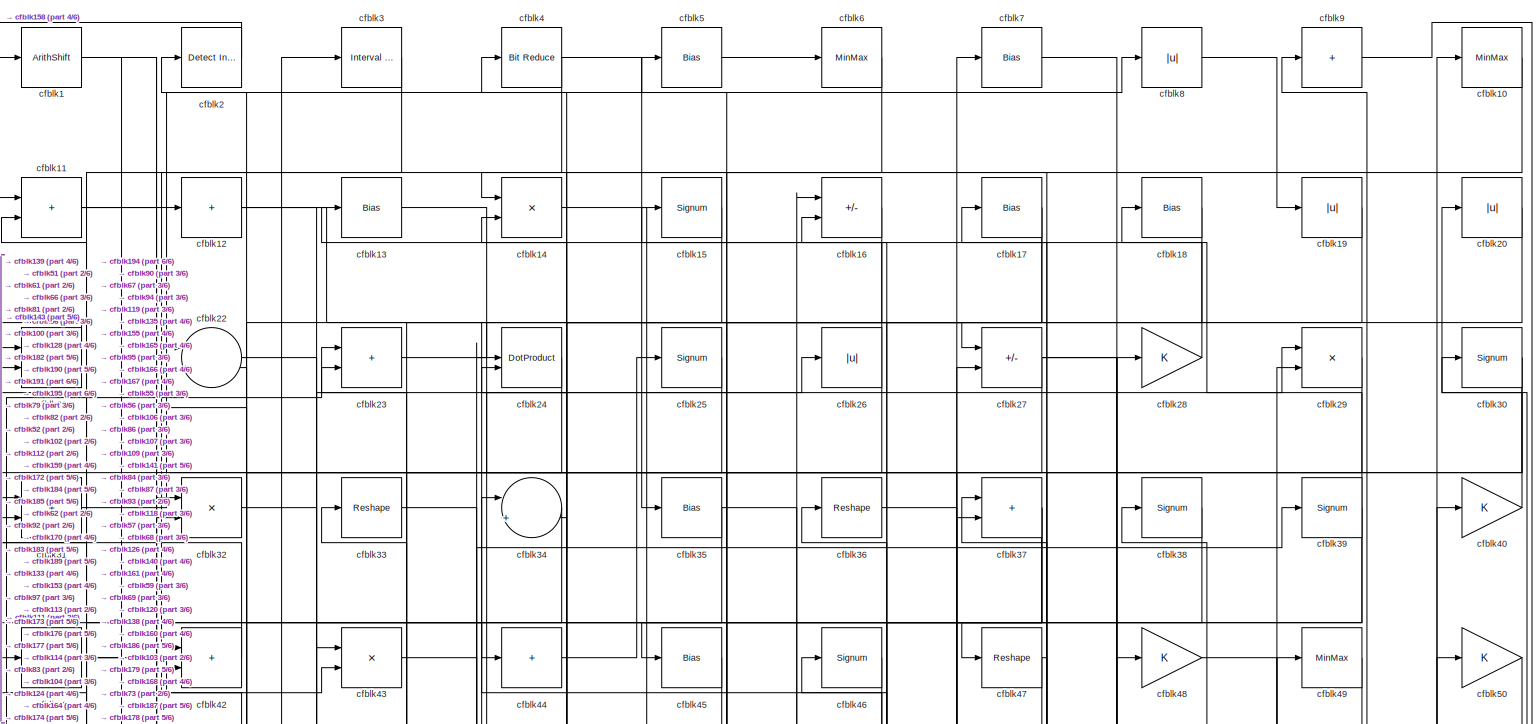
[diagram: root canvas - part 1/6, full width, top band]
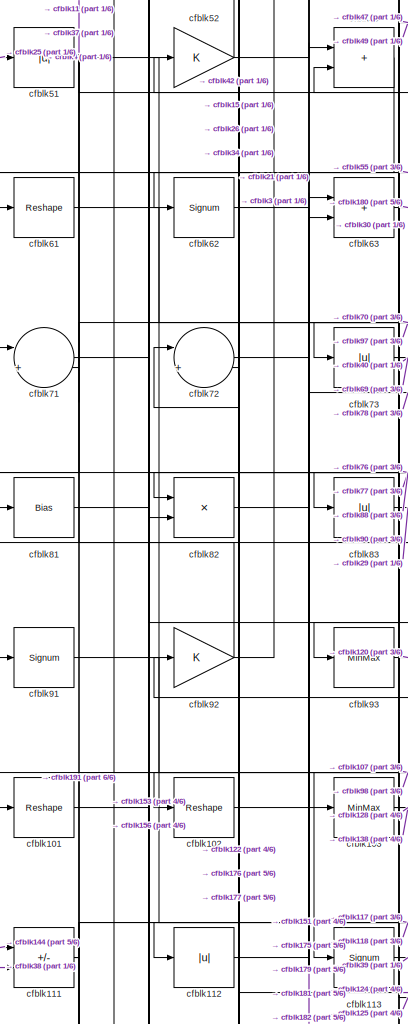
[diagram: root canvas - part 2/6, middle left region]
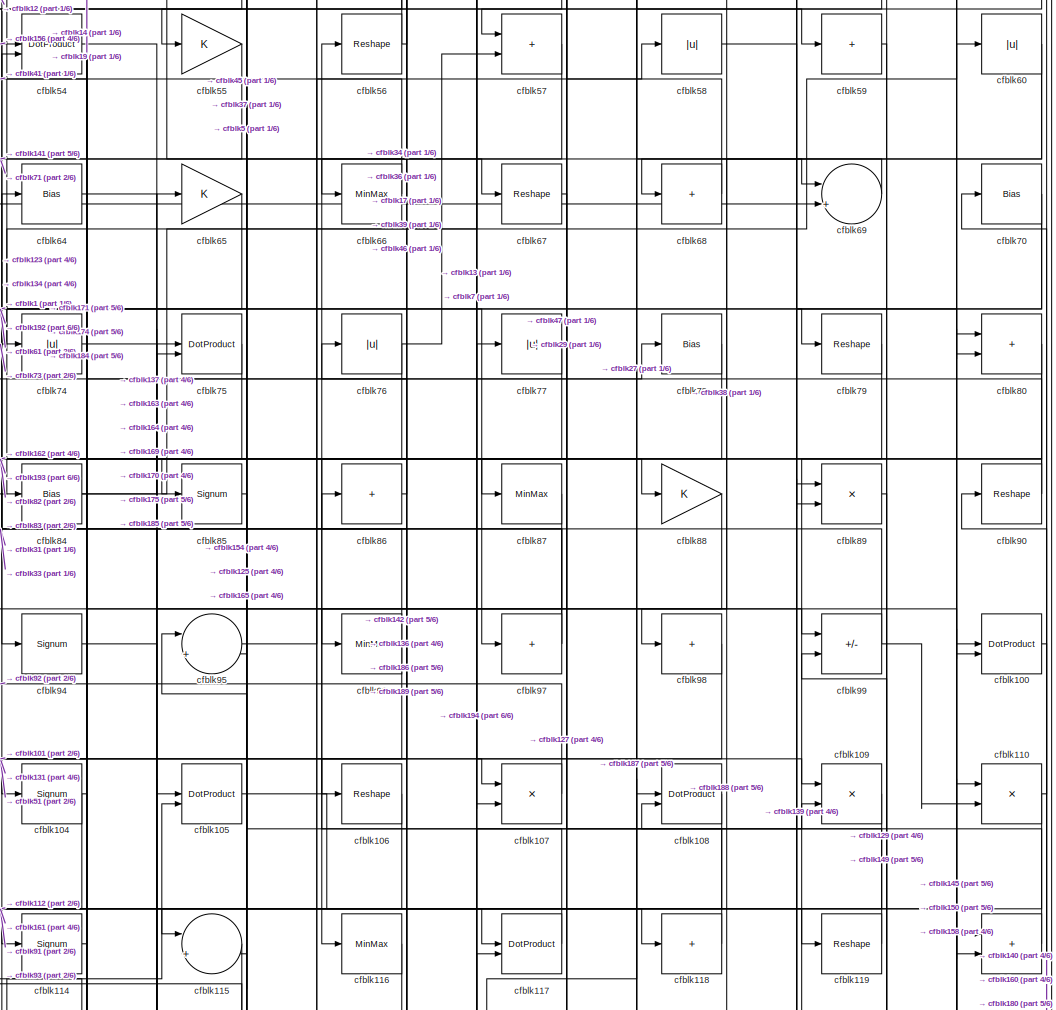
[diagram: root canvas - part 3/6, central region]
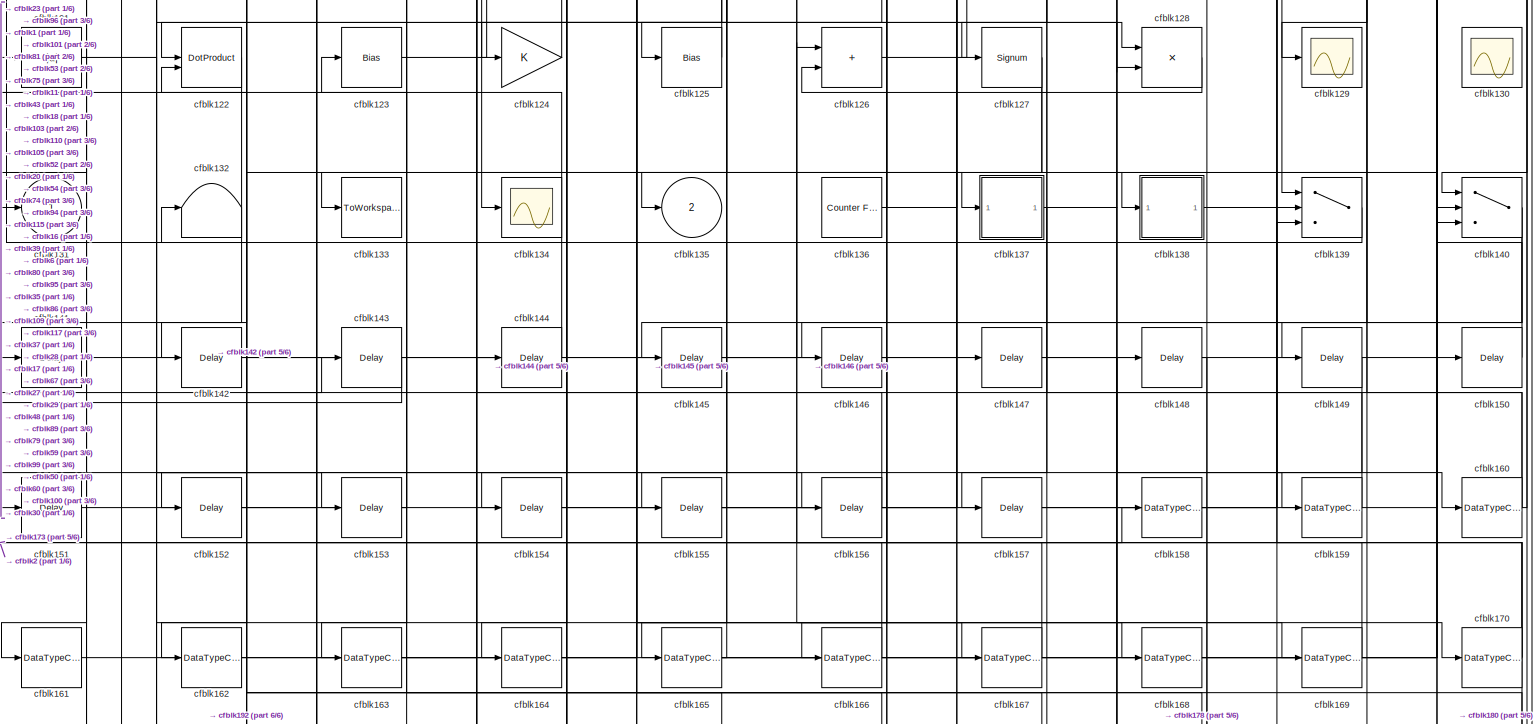
[diagram: root canvas - part 4/6, full width, bottom band]
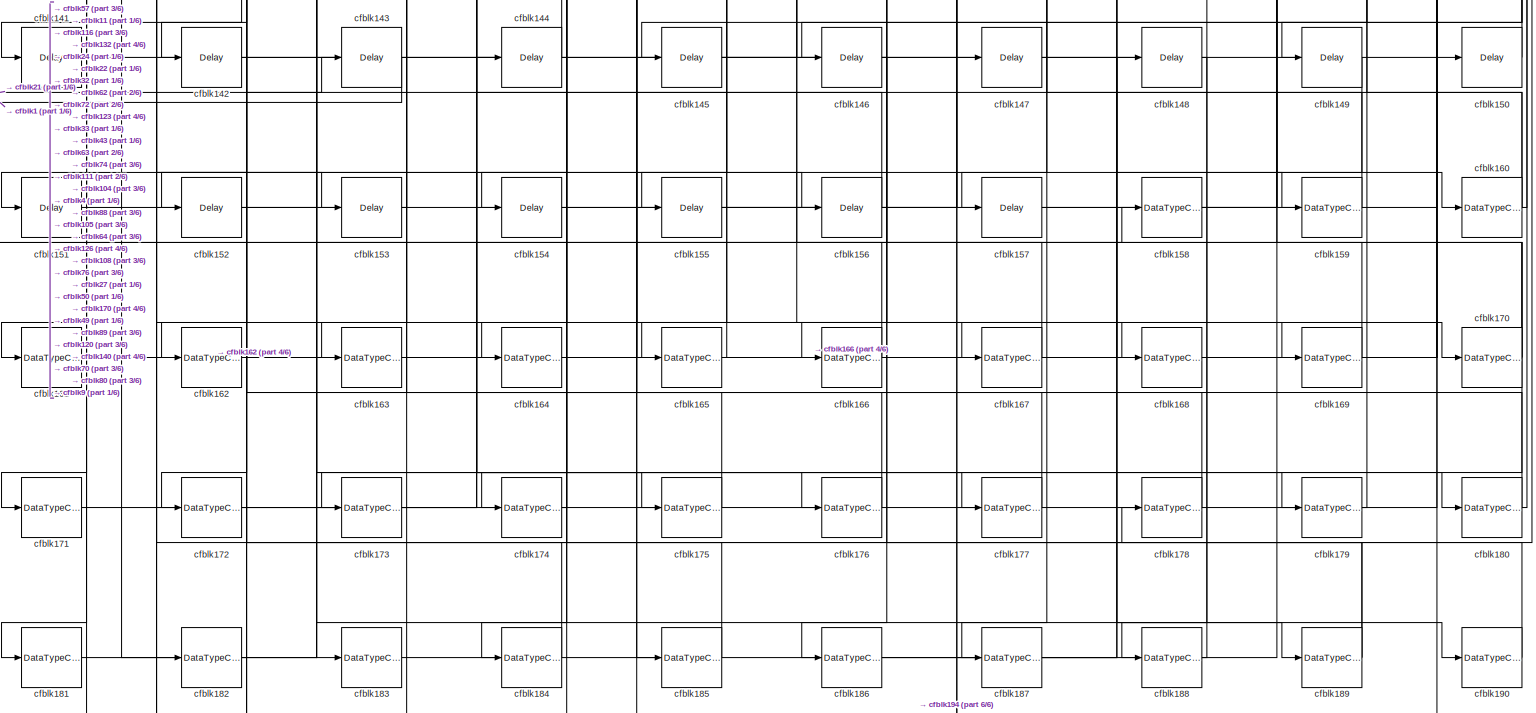
[diagram: root canvas - part 5/6, full width, bottom band]
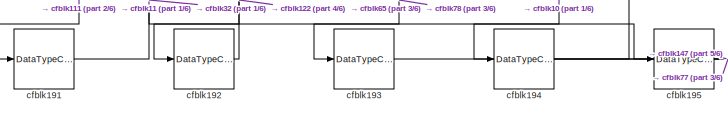
[diagram: root canvas - part 6/6, bottom left region]
MODEL slx_7a493514b1d8
KIND model
CONFIG AbsTol = auto
CONFIG EnableMultiTasking = off
CONFIG FixedStep = auto
CONFIG MaxStep = auto
CONFIG MinStep = auto
CONFIG RelTol = 1e-3
CONFIG SampleTimeConstraint = Unconstrained
CONFIG SolverName = VariableStepAuto
CONFIG StartTime = 0.0
CONFIG StopTime = 10.0
BLOCK [ArithShift] cfblk1
  BitShiftNumber = 8
  InputPortMap = u0
BLOCK [MinMax] cfblk10
BLOCK [DotProduct] cfblk100
  OutDataTypeStr = Inherit: Inherit via internal rule
BLOCK [Reshape] cfblk101
BLOCK [Reshape] cfblk102
BLOCK [MinMax] cfblk103
BLOCK [Signum] cfblk104
BLOCK [DotProduct] cfblk105
  OutDataTypeStr = Inherit: Inherit via internal rule
BLOCK [Reshape] cfblk106
BLOCK [Product] cfblk107
  Inputs = */
  RndMeth = Zero
  SaturateOnIntegerOverflow = on
BLOCK [DotProduct] cfblk108
  OutDataTypeStr = Inherit: Inherit via internal rule
BLOCK [Product] cfblk109
  Inputs = */
  RndMeth = Zero
  SaturateOnIntegerOverflow = on
BLOCK [Sum] cfblk11
  IconShape = rectangular
BLOCK [Product] cfblk110
  Inputs = */
  RndMeth = Zero
  SaturateOnIntegerOverflow = on
BLOCK [Sum] cfblk111
  IconShape = rectangular
  Inputs = +-
BLOCK [Abs] cfblk112
  SaturateOnIntegerOverflow = off
BLOCK [Signum] cfblk113
BLOCK [Signum] cfblk114
BLOCK [Sum] cfblk115
  Inputs = |++
BLOCK [MinMax] cfblk116
BLOCK [DotProduct] cfblk117
  OutDataTypeStr = Inherit: Inherit via internal rule
BLOCK [Sum] cfblk118
  IconShape = rectangular
  Inputs = +
BLOCK [Reshape] cfblk119
BLOCK [Sum] cfblk12
  IconShape = rectangular
  Inputs = +
BLOCK [Sum] cfblk120
  IconShape = rectangular
BLOCK [Abs] cfblk121
  SaturateOnIntegerOverflow = off
BLOCK [DotProduct] cfblk122
  OutDataTypeStr = Inherit: Inherit via internal rule
BLOCK [Bias] cfblk123
  Bias = 0.0
  SaturateOnIntegerOverflow = off
BLOCK [Gain] cfblk124
BLOCK [Bias] cfblk125
  Bias = 0.0
  SaturateOnIntegerOverflow = off
BLOCK [Sum] cfblk126
  IconShape = rectangular
BLOCK [Signum] cfblk127
BLOCK [Product] cfblk128
  Inputs = */
  RndMeth = Zero
  SaturateOnIntegerOverflow = on
BLOCK [Scope] cfblk129
  Floating = off
  NumInputPorts = 1
  ScopeSpecificationString = Simulink.scopes.TimeScopeBlockCfg('CurrentConfiguration', extmgr.ConfigurationSet(extmgr.Configuration('Core','General UI',true),extmgr.Configuration('Core','Source UI',true),extmgr.Configuration('Sources','WiredSimulink',true,'DataLoggingVariableName','ScopeData2','DataLoggingSaveFormat','Array','DataLoggingLimitDataPoints',true,'DataLoggingDecimation','1'),extmgr.Configuration('Visuals','Time Do...<+868ch>
BLOCK [Bias] cfblk13
  Bias = 0.0
  SaturateOnIntegerOverflow = off
BLOCK [Scope] cfblk130
  Floating = on
  NumInputPorts = 1
  ScopeSpecificationString = Simulink.scopes.TimeScopeBlockCfg('CurrentConfiguration', extmgr.ConfigurationSet(extmgr.Configuration('Core','General UI',true,'FigureColor',[0.156862745098039 0.156862745098039 0.156862745098039]),extmgr.Configuration('Core','Source UI',true),extmgr.Configuration('Sources','WiredSimulink',true,'DataLoggingVariableName','ScopeData1','DataLoggingSaveFormat','StructureWithTime','DataLoggingLimitDat...<+2713ch>
BLOCK [Outport] cfblk131
  VectorParamsAs1DForOutWhenUnconnected = off
BLOCK [Terminator] cfblk132
BLOCK [ToWorkspace] cfblk133
  MaxDataPoints = inf
  SampleTime = -1
  SaveFormat = Timeseries
  VariableName = simout
BLOCK [Scope] cfblk134
  Floating = off
  NumInputPorts = 1
  ScopeSpecificationString = Simulink.scopes.TimeScopeBlockCfg('CurrentConfiguration', extmgr.ConfigurationSet(extmgr.Configuration('Core','General UI',true),extmgr.Configuration('Core','Source UI',true),extmgr.Configuration('Sources','WiredSimulink',true,'DataLoggingVariableName','ScopeData2','DataLoggingSaveFormat','Array','DataLoggingLimitDataPoints',true,'DataLoggingDecimation','1'),extmgr.Configuration('Visuals','Time Do...<+868ch>
BLOCK [Outport] cfblk135
  Port = 2
  VectorParamsAs1DForOutWhenUnconnected = off
BLOCK [Reference] cfblk136  REF=hdlsllib/Sources/Counter
Free-Running
  SourceBlock = hdlsllib/Sources/Counter\nFree-Running
  SourceType = Counter Free-Running
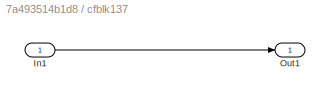
BLOCK [SubSystem] cfblk137
  LibrarySourceBlock = hdlsllib/Ports &\nSubsystems/Subsystem
BLOCK [Inport] cfblk137/In1
BLOCK [Outport] cfblk137/Out1
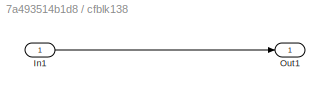
BLOCK [SubSystem] cfblk138
  LibrarySourceBlock = hdlsllib/Ports &\nSubsystems/Subsystem
BLOCK [Inport] cfblk138/In1
BLOCK [Outport] cfblk138/Out1
BLOCK [Switch] cfblk139
  InputSameDT = off
  SaturateOnIntegerOverflow = off
BLOCK [Product] cfblk14
  Inputs = */
  RndMeth = Zero
  SaturateOnIntegerOverflow = on
BLOCK [Switch] cfblk140
  InputSameDT = off
  SaturateOnIntegerOverflow = off
BLOCK [Delay] cfblk141
  InputPortMap = u0
  SampleTime = 1
BLOCK [Delay] cfblk142
  InputPortMap = u0
  SampleTime = 1
BLOCK [Delay] cfblk143
  InputPortMap = u0
  SampleTime = 1
BLOCK [Delay] cfblk144
  InputPortMap = u0
  SampleTime = 1
BLOCK [Delay] cfblk145
  InputPortMap = u0
  SampleTime = 1
BLOCK [Delay] cfblk146
  InputPortMap = u0
  SampleTime = 1
BLOCK [Delay] cfblk147
  InputPortMap = u0
  SampleTime = 1
BLOCK [Delay] cfblk148
  InputPortMap = u0
  SampleTime = 1
BLOCK [Delay] cfblk149
  InputPortMap = u0
  SampleTime = 1
BLOCK [Signum] cfblk15
BLOCK [Delay] cfblk150
  InputPortMap = u0
  SampleTime = 1
BLOCK [Delay] cfblk151
  InputPortMap = u0
  SampleTime = 1
BLOCK [Delay] cfblk152
  InputPortMap = u0
  SampleTime = 1
BLOCK [Delay] cfblk153
  InputPortMap = u0
  SampleTime = 1
BLOCK [Delay] cfblk154
  InputPortMap = u0
  SampleTime = 1
BLOCK [Delay] cfblk155
  InputPortMap = u0
  SampleTime = 1
BLOCK [Delay] cfblk156
  InputPortMap = u0
  SampleTime = 1
BLOCK [Delay] cfblk157
  InputPortMap = u0
  SampleTime = 1
BLOCK [DataTypeConversion] cfblk158
  OutDataTypeStr = uint8
  RndMeth = Floor
  SaturateOnIntegerOverflow = off
BLOCK [DataTypeConversion] cfblk159
  OutDataTypeStr = uint8
  RndMeth = Floor
  SaturateOnIntegerOverflow = off
BLOCK [Sum] cfblk16
  IconShape = rectangular
  Inputs = +-
BLOCK [DataTypeConversion] cfblk160
  RndMeth = Floor
  SaturateOnIntegerOverflow = off
BLOCK [DataTypeConversion] cfblk161
  OutDataTypeStr = uint8
  RndMeth = Floor
  SaturateOnIntegerOverflow = off
BLOCK [DataTypeConversion] cfblk162
  OutDataTypeStr = uint8
  RndMeth = Floor
  SaturateOnIntegerOverflow = off
BLOCK [DataTypeConversion] cfblk163
  OutDataTypeStr = uint8
  RndMeth = Floor
  SaturateOnIntegerOverflow = off
BLOCK [DataTypeConversion] cfblk164
  OutDataTypeStr = uint8
  RndMeth = Floor
  SaturateOnIntegerOverflow = off
BLOCK [DataTypeConversion] cfblk165
  RndMeth = Floor
  SaturateOnIntegerOverflow = off
BLOCK [DataTypeConversion] cfblk166
  OutDataTypeStr = uint8
  RndMeth = Floor
  SaturateOnIntegerOverflow = off
BLOCK [DataTypeConversion] cfblk167
  OutDataTypeStr = uint8
  RndMeth = Floor
  SaturateOnIntegerOverflow = off
BLOCK [DataTypeConversion] cfblk168
  OutDataTypeStr = uint8
  RndMeth = Floor
  SaturateOnIntegerOverflow = off
BLOCK [DataTypeConversion] cfblk169
  OutDataTypeStr = uint8
  RndMeth = Floor
  SaturateOnIntegerOverflow = off
BLOCK [Bias] cfblk17
  Bias = 0.0
  SaturateOnIntegerOverflow = off
BLOCK [DataTypeConversion] cfblk170
  RndMeth = Floor
  SaturateOnIntegerOverflow = off
BLOCK [DataTypeConversion] cfblk171
  OutDataTypeStr = uint8
  RndMeth = Floor
  SaturateOnIntegerOverflow = off
BLOCK [DataTypeConversion] cfblk172
  OutDataTypeStr = uint8
  RndMeth = Floor
  SaturateOnIntegerOverflow = off
BLOCK [DataTypeConversion] cfblk173
  OutDataTypeStr = uint8
  RndMeth = Floor
  SaturateOnIntegerOverflow = off
BLOCK [DataTypeConversion] cfblk174
  OutDataTypeStr = uint8
  RndMeth = Floor
  SaturateOnIntegerOverflow = off
BLOCK [DataTypeConversion] cfblk175
  OutDataTypeStr = uint8
  RndMeth = Floor
  SaturateOnIntegerOverflow = off
BLOCK [DataTypeConversion] cfblk176
  OutDataTypeStr = uint8
  RndMeth = Floor
  SaturateOnIntegerOverflow = off
BLOCK [DataTypeConversion] cfblk177
  OutDataTypeStr = uint8
  RndMeth = Floor
  SaturateOnIntegerOverflow = off
BLOCK [DataTypeConversion] cfblk178
  OutDataTypeStr = uint8
  RndMeth = Floor
  SaturateOnIntegerOverflow = off
BLOCK [DataTypeConversion] cfblk179
  OutDataTypeStr = uint8
  RndMeth = Floor
  SaturateOnIntegerOverflow = off
BLOCK [Bias] cfblk18
  Bias = 0.0
  SaturateOnIntegerOverflow = off
BLOCK [DataTypeConversion] cfblk180
  RndMeth = Floor
  SaturateOnIntegerOverflow = off
BLOCK [DataTypeConversion] cfblk181
  OutDataTypeStr = uint8
  RndMeth = Floor
  SaturateOnIntegerOverflow = off
BLOCK [DataTypeConversion] cfblk182
  OutDataTypeStr = uint8
  RndMeth = Floor
  SaturateOnIntegerOverflow = off
BLOCK [DataTypeConversion] cfblk183
  OutDataTypeStr = uint8
  RndMeth = Floor
  SaturateOnIntegerOverflow = off
BLOCK [DataTypeConversion] cfblk184
  OutDataTypeStr = uint8
  RndMeth = Floor
  SaturateOnIntegerOverflow = off
BLOCK [DataTypeConversion] cfblk185
  OutDataTypeStr = uint8
  RndMeth = Floor
  SaturateOnIntegerOverflow = off
BLOCK [DataTypeConversion] cfblk186
  OutDataTypeStr = uint8
  RndMeth = Floor
  SaturateOnIntegerOverflow = off
BLOCK [DataTypeConversion] cfblk187
  OutDataTypeStr = uint8
  RndMeth = Floor
  SaturateOnIntegerOverflow = off
BLOCK [DataTypeConversion] cfblk188
  OutDataTypeStr = uint8
  RndMeth = Floor
  SaturateOnIntegerOverflow = off
BLOCK [DataTypeConversion] cfblk189
  RndMeth = Floor
  SaturateOnIntegerOverflow = off
BLOCK [Abs] cfblk19
  SaturateOnIntegerOverflow = off
BLOCK [DataTypeConversion] cfblk190
  OutDataTypeStr = uint8
  RndMeth = Floor
  SaturateOnIntegerOverflow = off
BLOCK [DataTypeConversion] cfblk191
  OutDataTypeStr = uint8
  RndMeth = Floor
  SaturateOnIntegerOverflow = off
BLOCK [DataTypeConversion] cfblk192
  OutDataTypeStr = uint8
  RndMeth = Floor
  SaturateOnIntegerOverflow = off
BLOCK [DataTypeConversion] cfblk193
  OutDataTypeStr = uint8
  RndMeth = Floor
  SaturateOnIntegerOverflow = off
BLOCK [DataTypeConversion] cfblk194
  RndMeth = Floor
  SaturateOnIntegerOverflow = off
BLOCK [DataTypeConversion] cfblk195
  OutDataTypeStr = uint8
  RndMeth = Floor
  SaturateOnIntegerOverflow = off
BLOCK [Reference] cfblk2  REF=simulink/Logic and Bit
Operations/Detect
Increase
  LibrarySourceBlock = hdlsllib/Logic and Bit\nOperations/Detect\nIncrease
  SourceBlock = simulink/Logic and Bit\nOperations/Detect\nIncrease
  SourceType = Detect Increase
BLOCK [Abs] cfblk20
  SaturateOnIntegerOverflow = off
BLOCK [Product] cfblk21
  Inputs = */
  RndMeth = Zero
  SaturateOnIntegerOverflow = on
BLOCK [Sum] cfblk22
  Inputs = |++
BLOCK [Sum] cfblk23
  IconShape = rectangular
BLOCK [DotProduct] cfblk24
  OutDataTypeStr = Inherit: Inherit via internal rule
BLOCK [Signum] cfblk25
BLOCK [Abs] cfblk26
  SaturateOnIntegerOverflow = off
BLOCK [Sum] cfblk27
  IconShape = rectangular
  Inputs = +-
BLOCK [Gain] cfblk28
BLOCK [Product] cfblk29
  Inputs = */
  RndMeth = Zero
  SaturateOnIntegerOverflow = on
BLOCK [Reference] cfblk3  REF=hdlsllib/Logic and Bit
Operations/Interval Test
  SourceBlock = hdlsllib/Logic and Bit\nOperations/Interval Test
  SourceType = Interval Test
BLOCK [Signum] cfblk30
BLOCK [Sum] cfblk31
  IconShape = rectangular
BLOCK [Product] cfblk32
  Inputs = */
  RndMeth = Zero
  SaturateOnIntegerOverflow = on
BLOCK [Reshape] cfblk33
BLOCK [Sum] cfblk34
  Inputs = |++
BLOCK [Bias] cfblk35
  Bias = 0.0
  SaturateOnIntegerOverflow = off
BLOCK [Reshape] cfblk36
BLOCK [Sum] cfblk37
  IconShape = rectangular
BLOCK [Signum] cfblk38
BLOCK [Signum] cfblk39
BLOCK [Reference] cfblk4  REF=hdlsllib/Logic and Bit
Operations/Bit Reduce
  SourceBlock = hdlsllib/Logic and Bit\nOperations/Bit Reduce
  SourceType = Bit Reduce
BLOCK [Gain] cfblk40
BLOCK [Sum] cfblk41
  IconShape = rectangular
  Inputs = +
BLOCK [Sum] cfblk42
  IconShape = rectangular
BLOCK [Product] cfblk43
  Inputs = */
  RndMeth = Zero
  SaturateOnIntegerOverflow = on
BLOCK [Sum] cfblk44
  IconShape = rectangular
  Inputs = +
BLOCK [Bias] cfblk45
  Bias = 0.0
  SaturateOnIntegerOverflow = off
BLOCK [Signum] cfblk46
BLOCK [Reshape] cfblk47
BLOCK [Gain] cfblk48
BLOCK [MinMax] cfblk49
BLOCK [Bias] cfblk5
  Bias = 0.0
  SaturateOnIntegerOverflow = off
BLOCK [Gain] cfblk50
BLOCK [Abs] cfblk51
  SaturateOnIntegerOverflow = off
BLOCK [Gain] cfblk52
BLOCK [Sum] cfblk53
  IconShape = rectangular
BLOCK [DotProduct] cfblk54
  OutDataTypeStr = Inherit: Inherit via internal rule
BLOCK [Gain] cfblk55
BLOCK [Reshape] cfblk56
BLOCK [Sum] cfblk57
  IconShape = rectangular
BLOCK [Abs] cfblk58
  SaturateOnIntegerOverflow = off
BLOCK [Sum] cfblk59
  IconShape = rectangular
  Inputs = +
BLOCK [MinMax] cfblk6
BLOCK [Abs] cfblk60
  SaturateOnIntegerOverflow = off
BLOCK [Reshape] cfblk61
BLOCK [Signum] cfblk62
BLOCK [Sum] cfblk63
  IconShape = rectangular
BLOCK [Bias] cfblk64
  Bias = 0.0
  SaturateOnIntegerOverflow = off
BLOCK [Gain] cfblk65
BLOCK [MinMax] cfblk66
BLOCK [Reshape] cfblk67
BLOCK [Sum] cfblk68
  IconShape = rectangular
  Inputs = +
BLOCK [Sum] cfblk69
  Inputs = |++
BLOCK [Bias] cfblk7
  Bias = 0.0
  SaturateOnIntegerOverflow = off
BLOCK [Bias] cfblk70
  Bias = 0.0
  SaturateOnIntegerOverflow = off
BLOCK [Sum] cfblk71
  Inputs = |++
BLOCK [Sum] cfblk72
  Inputs = |++
BLOCK [Abs] cfblk73
  SaturateOnIntegerOverflow = off
BLOCK [Abs] cfblk74
  SaturateOnIntegerOverflow = off
BLOCK [DotProduct] cfblk75
  OutDataTypeStr = Inherit: Inherit via internal rule
BLOCK [Abs] cfblk76
  SaturateOnIntegerOverflow = off
BLOCK [Abs] cfblk77
  SaturateOnIntegerOverflow = off
BLOCK [Bias] cfblk78
  Bias = 0.0
  SaturateOnIntegerOverflow = off
BLOCK [Reshape] cfblk79
BLOCK [Abs] cfblk8
  SaturateOnIntegerOverflow = off
BLOCK [Sum] cfblk80
  IconShape = rectangular
BLOCK [Bias] cfblk81
  Bias = 0.0
  SaturateOnIntegerOverflow = off
BLOCK [Product] cfblk82
  Inputs = */
  RndMeth = Zero
  SaturateOnIntegerOverflow = on
BLOCK [Abs] cfblk83
  SaturateOnIntegerOverflow = off
BLOCK [Bias] cfblk84
  Bias = 0.0
  SaturateOnIntegerOverflow = off
BLOCK [Signum] cfblk85
BLOCK [Sum] cfblk86
  IconShape = rectangular
  Inputs = +
BLOCK [MinMax] cfblk87
BLOCK [Gain] cfblk88
BLOCK [Product] cfblk89
  Inputs = */
  RndMeth = Zero
  SaturateOnIntegerOverflow = on
BLOCK [Sum] cfblk9
  IconShape = rectangular
  Inputs = +
BLOCK [Reshape] cfblk90
BLOCK [Signum] cfblk91
BLOCK [Gain] cfblk92
BLOCK [MinMax] cfblk93
BLOCK [Signum] cfblk94
BLOCK [Sum] cfblk95
  Inputs = |++
BLOCK [MinMax] cfblk96
BLOCK [Sum] cfblk97
  IconShape = rectangular
  Inputs = +
BLOCK [Sum] cfblk98
  IconShape = rectangular
  Inputs = +
BLOCK [Sum] cfblk99
  IconShape = rectangular
  Inputs = +-
LINE cfblk100:1 -> cfblk140:1
LINE cfblk101:1 -> cfblk156:1
LINE cfblk102:1 -> cfblk113:1
NET cfblk103:1 -> cfblk128:2, cfblk138:1
NET cfblk104:1 -> cfblk171:1, cfblk174:1
LINE cfblk105:1 -> cfblk119:1
LINE cfblk106:1 -> cfblk115:1
LINE cfblk107:1 -> cfblk92:1
LINE cfblk108:1 -> cfblk186:1
LINE cfblk109:1 -> cfblk161:1
LINE cfblk10:1 -> cfblk194:1
NET cfblk110:1 -> cfblk134:1, cfblk90:1
NET cfblk111:1 -> cfblk191:1, cfblk21:2
LINE cfblk112:1 -> cfblk118:1
LINE cfblk113:1 -> cfblk39:1
LINE cfblk114:1 -> cfblk84:1
LINE cfblk115:1 -> cfblk154:1
LINE cfblk116:1 -> cfblk142:1
LINE cfblk117:1 -> cfblk56:1
LINE cfblk118:1 -> cfblk37:1
LINE cfblk119:1 -> cfblk5:1
NET cfblk11:1 -> cfblk182:1, cfblk195:1
LINE cfblk120:1 -> cfblk38:1
LINE cfblk121:1 -> cfblk168:1
LINE cfblk122:1 -> cfblk151:1
LINE cfblk123:1 -> cfblk105:2
LINE cfblk124:1 -> cfblk52:1
LINE cfblk125:1 -> cfblk53:2
LINE cfblk126:1 -> cfblk28:1
NET cfblk127:1 -> cfblk152:1, cfblk163:1
LINE cfblk128:1 -> cfblk126:2
NET cfblk12:1 -> cfblk114:1, cfblk44:1
NET cfblk136:1 -> cfblk109:2, cfblk86:1
LINE cfblk137/In1:1 -> cfblk137/Out1:1
NET cfblk137:1 -> cfblk140:2, cfblk157:1, cfblk159:1
LINE cfblk138/In1:1 -> cfblk138/Out1:1
LINE cfblk138:1 -> cfblk29:2
LINE cfblk139:1 -> cfblk23:1
LINE cfblk13:1 -> cfblk107:2
NET cfblk140:1 -> cfblk145:1, cfblk146:1
LINE cfblk141:1 -> cfblk27:2
LINE cfblk142:1 -> cfblk126:1
LINE cfblk143:1 -> cfblk1:1
LINE cfblk144:1 -> cfblk111:1
LINE cfblk145:1 -> cfblk120:1
LINE cfblk146:1 -> cfblk166:1
LINE cfblk147:1 -> cfblk190:1
LINE cfblk148:1 -> cfblk188:1
LINE cfblk149:1 -> cfblk181:1
LINE cfblk14:1 -> cfblk67:1
LINE cfblk150:1 -> cfblk80:1
LINE cfblk151:1 -> cfblk53:1
LINE cfblk152:1 -> cfblk139:2
LINE cfblk153:1 -> cfblk23:2
LINE cfblk154:1 -> cfblk117:2
LINE cfblk155:1 -> cfblk37:2
LINE cfblk156:1 -> cfblk54:1
LINE cfblk157:1 -> cfblk139:3
LINE cfblk158:1 -> cfblk60:1
LINE cfblk159:1 -> cfblk2:1
LINE cfblk15:1 -> cfblk112:1
NET cfblk160:1 -> cfblk17:1, cfblk30:1, cfblk99:2
LINE cfblk161:1 -> cfblk48:1
LINE cfblk162:1 -> cfblk144:1
LINE cfblk163:1 -> cfblk75:1
LINE cfblk164:1 -> cfblk75:2
NET cfblk165:1 -> cfblk100:1, cfblk110:1, cfblk95:1
LINE cfblk166:1 -> cfblk16:1
LINE cfblk167:1 -> cfblk16:2
LINE cfblk168:1 -> cfblk50:1
LINE cfblk169:1 -> cfblk121:1
LINE cfblk16:1 -> cfblk165:1
NET cfblk170:1 -> cfblk11:1, cfblk173:1, cfblk43:1, cfblk89:1
LINE cfblk171:1 -> cfblk74:1
LINE cfblk172:1 -> cfblk150:1
LINE cfblk173:1 -> cfblk24:1
LINE cfblk174:1 -> cfblk24:2
LINE cfblk175:1 -> cfblk105:1
LINE cfblk176:1 -> cfblk72:1
LINE cfblk177:1 -> cfblk72:2
LINE cfblk178:1 -> cfblk123:1
LINE cfblk179:1 -> cfblk9:1
NET cfblk17:1 -> cfblk106:1, cfblk34:2
NET cfblk180:1 -> cfblk132:1, cfblk70:1
LINE cfblk181:1 -> cfblk63:1
LINE cfblk182:1 -> cfblk63:2
LINE cfblk183:1 -> cfblk148:1
LINE cfblk184:1 -> cfblk22:1
LINE cfblk185:1 -> cfblk22:2
LINE cfblk186:1 -> cfblk49:1
LINE cfblk187:1 -> cfblk108:1
LINE cfblk188:1 -> cfblk108:2
NET cfblk189:1 -> cfblk4:1, cfblk76:1
LINE cfblk18:1 -> cfblk133:1
LINE cfblk190:1 -> cfblk32:1
LINE cfblk191:1 -> cfblk32:2
LINE cfblk192:1 -> cfblk122:2
LINE cfblk193:1 -> cfblk65:1
NET cfblk194:1 -> cfblk147:1, cfblk77:1
LINE cfblk195:1 -> cfblk10:1
LINE cfblk19:1 -> cfblk104:1
NET cfblk1:1 -> cfblk128:1, cfblk12:1, cfblk79:1
LINE cfblk20:1 -> cfblk124:1
LINE cfblk21:1 -> cfblk143:1
LINE cfblk22:1 -> cfblk183:1
LINE cfblk23:1 -> cfblk27:1
LINE cfblk24:1 -> cfblk172:1
LINE cfblk25:1 -> cfblk51:1
NET cfblk26:1 -> cfblk102:1, cfblk13:1
NET cfblk27:1 -> cfblk140:3, cfblk45:1, cfblk69:1
LINE cfblk28:1 -> cfblk15:1
LINE cfblk29:1 -> cfblk57:1
LINE cfblk2:1 -> cfblk158:1
NET cfblk30:1 -> cfblk73:1, cfblk82:2
LINE cfblk31:1 -> cfblk8:1
LINE cfblk32:1 -> cfblk189:1
LINE cfblk33:1 -> cfblk176:1
LINE cfblk34:1 -> cfblk62:1
NET cfblk35:1 -> cfblk164:1, cfblk167:1
LINE cfblk36:1 -> cfblk109:1
NET cfblk37:1 -> cfblk47:1, cfblk61:1, cfblk95:2
LINE cfblk38:1 -> cfblk111:2
NET cfblk39:1 -> cfblk155:1, cfblk18:1, cfblk66:1
LINE cfblk3:1 -> cfblk42:1
LINE cfblk40:1 -> cfblk20:1
NET cfblk41:1 -> cfblk100:2, cfblk43:2
LINE cfblk42:1 -> cfblk31:1
LINE cfblk43:1 -> cfblk177:1
LINE cfblk44:1 -> cfblk25:1
LINE cfblk45:1 -> cfblk94:1
LINE cfblk46:1 -> cfblk55:1
NET cfblk47:1 -> cfblk87:1, cfblk93:1
LINE cfblk48:1 -> cfblk160:1
LINE cfblk49:1 -> cfblk103:1
NET cfblk4:1 -> cfblk35:1, cfblk81:1
LINE cfblk50:1 -> cfblk187:1
NET cfblk51:1 -> cfblk107:1, cfblk11:2
NET cfblk52:1 -> cfblk26:1, cfblk42:2
LINE cfblk53:1 -> cfblk122:1
LINE cfblk54:1 -> cfblk137:1
LINE cfblk55:1 -> cfblk71:1
NET cfblk56:1 -> cfblk34:1, cfblk36:1
LINE cfblk57:1 -> cfblk141:1
LINE cfblk58:1 -> cfblk80:2
LINE cfblk59:1 -> cfblk129:1
LINE cfblk5:1 -> cfblk6:1
NET cfblk60:1 -> cfblk85:1, cfblk98:1
LINE cfblk61:1 -> cfblk97:1
LINE cfblk62:1 -> cfblk179:1
LINE cfblk63:1 -> cfblk180:1
LINE cfblk64:1 -> cfblk185:1
LINE cfblk65:1 -> cfblk192:1
LINE cfblk66:1 -> cfblk41:1
LINE cfblk67:1 -> cfblk127:1
LINE cfblk68:1 -> cfblk14:1
LINE cfblk69:1 -> cfblk68:1
LINE cfblk6:1 -> cfblk135:1
NET cfblk70:1 -> cfblk71:2, cfblk89:2
LINE cfblk71:1 -> cfblk88:1
LINE cfblk72:1 -> cfblk175:1
NET cfblk73:1 -> cfblk40:1, cfblk69:2
LINE cfblk74:1 -> cfblk170:1
LINE cfblk75:1 -> cfblk162:1
NET cfblk76:1 -> cfblk57:2, cfblk91:1
LINE cfblk77:1 -> cfblk83:1
LINE cfblk78:1 -> cfblk193:1
LINE cfblk79:1 -> cfblk139:1
LINE cfblk7:1 -> cfblk59:1
NET cfblk80:1 -> cfblk125:1, cfblk96:1
LINE cfblk81:1 -> cfblk153:1
LINE cfblk82:1 -> cfblk78:1
LINE cfblk83:1 -> cfblk29:1
NET cfblk84:1 -> cfblk7:1, cfblk99:1
LINE cfblk85:1 -> cfblk115:2
LINE cfblk86:1 -> cfblk46:1
LINE cfblk87:1 -> cfblk116:1
LINE cfblk88:1 -> cfblk184:1
LINE cfblk89:1 -> cfblk149:1
LINE cfblk8:1 -> cfblk19:1
NET cfblk90:1 -> cfblk14:2, cfblk82:1
LINE cfblk91:1 -> cfblk117:1
NET cfblk92:1 -> cfblk21:1, cfblk3:1
LINE cfblk93:1 -> cfblk120:2
LINE cfblk94:1 -> cfblk169:1
LINE cfblk95:1 -> cfblk58:1
NET cfblk96:1 -> cfblk131:1, cfblk31:2
NET cfblk97:1 -> cfblk33:1, cfblk54:2
LINE cfblk98:1 -> cfblk101:1
NET cfblk99:1 -> cfblk110:2, cfblk64:1
LINE cfblk9:1 -> cfblk178:1
note: NET lines group one-source signal fan-out (src -> all destinations, sorted); 1:1 wires keep LINE
